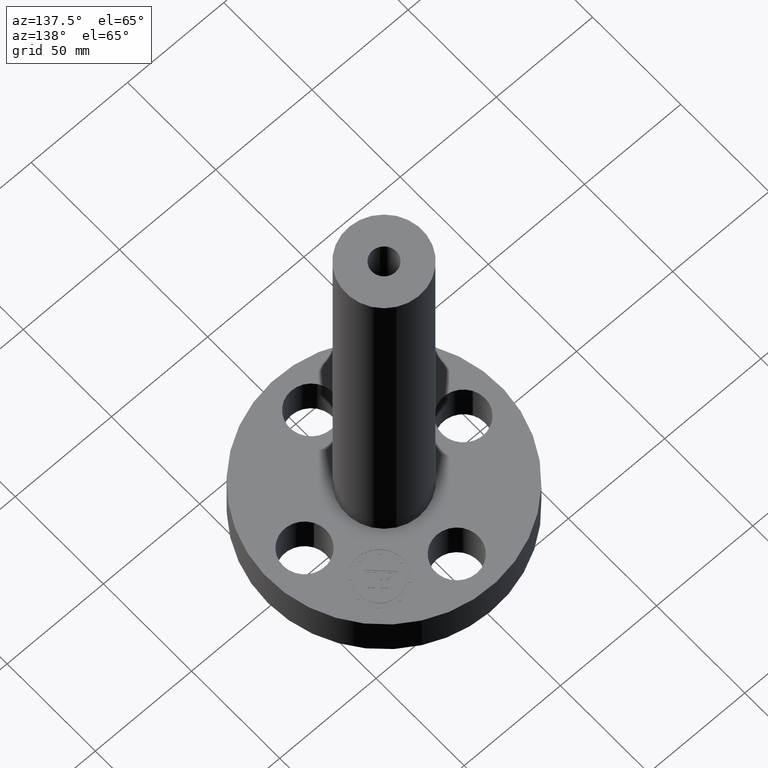
[diagram: clean part render]
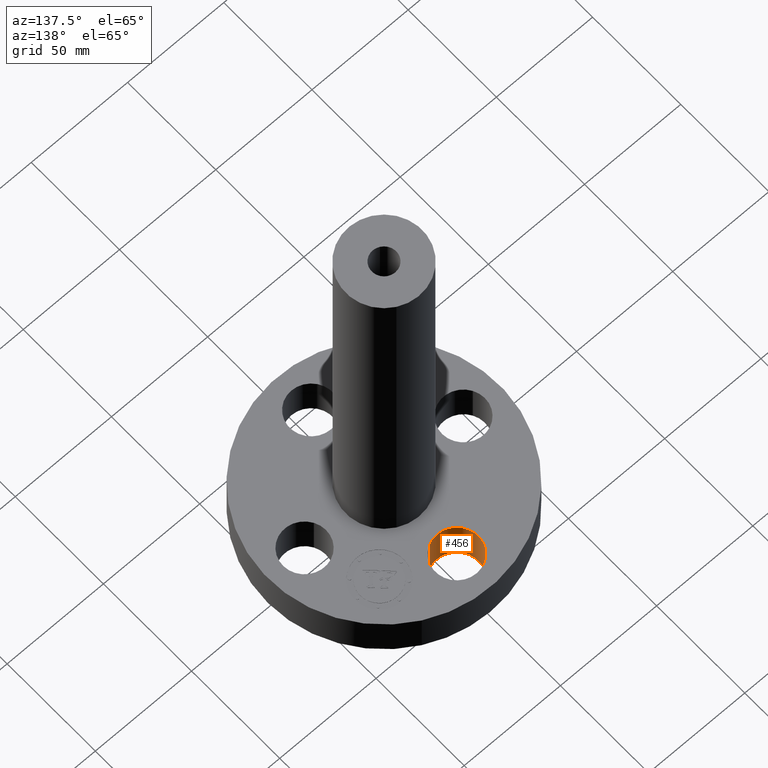
[diagram: same view with one face highlighted and labeled with its STEP entity id]
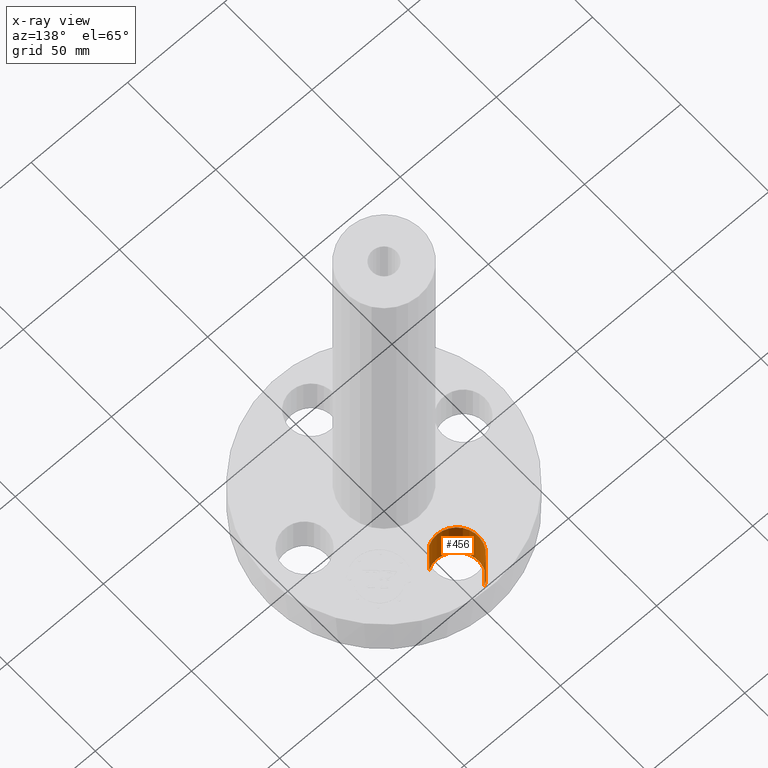
[diagram: x-ray of the same camera — body ghosted, the highlighted face saturated]
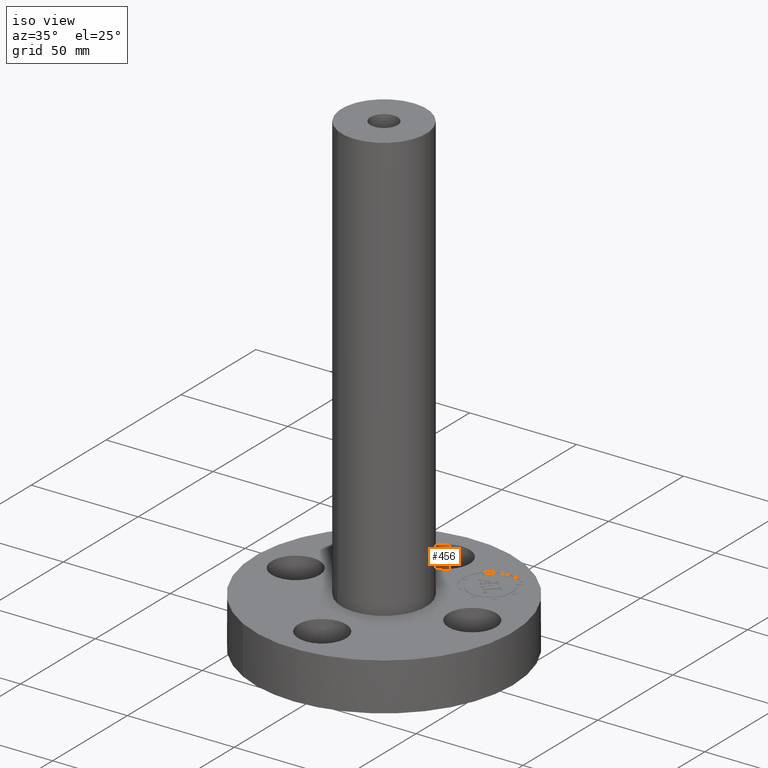
[diagram: same view with one face highlighted and labeled with its STEP entity id]
A machine part, auxiliary view. The second image highlights one B-rep face of the part: STEP entity #456.
The next image is the same camera in x-ray: the body ghosted, the highlighted face saturated — about 0% of this face is hidden behind the body in this view.
A second angle (iso view) of the same face is appended — the face is thin or edge-on in the first view.
In plain terms, the highlighted cylindrical surface (edge-blend (fillet) strip) has radius 11.176 mm, axis along (0, 0, 1).
Its self-contained STEP definition (entity closure, byte-faithful):
#175=AXIS2_PLACEMENT_3D('Circle Axis2P3D',#173,#174,$) ;
#417=AXIS2_PLACEMENT_3D('Cylinder Axis2P3D',#414,#415,#416) ;
#447=AXIS2_PLACEMENT_3D('Circle Axis2P3D',#445,#446,$) ;
#173=CARTESIAN_POINT('Axis2P3D Location',(-2.09805925913E-016,1.62500000001,0.880000000004)) ;
#177=CARTESIAN_POINT('Vertex',(0.210947236987,1.23886367277,0.880000000004)) ;
#179=CARTESIAN_POINT('Vertex',(-0.210947236987,2.01113632724,0.880000000004)) ;
#414=CARTESIAN_POINT('Axis2P3D Location',(-2.98507657293E-016,1.62500000001,0.00393700787402)) ;
#419=CARTESIAN_POINT('Line Origine',(0.210947236987,1.23886367277,0.440000000002)) ;
#423=CARTESIAN_POINT('Vertex',(0.210947236987,1.23886367277,2.2401153548E-016)) ;
#426=CARTESIAN_POINT('Line Origine',(-0.210947236987,2.01113632724,0.440000000002)) ;
#430=CARTESIAN_POINT('Vertex',(-0.210947236987,2.01113632724,2.2401153548E-016)) ;
#445=CARTESIAN_POINT('Axis2P3D Location',(-2.98507657293E-016,1.62500000001,0.)) ;
#174=DIRECTION('Axis2P3D Direction',(0.,0.,-0.0393700787402)) ;
#415=DIRECTION('Axis2P3D Direction',(0.,0.,0.0393700787402)) ;
#416=DIRECTION('Axis2P3D XDirection',(-0.0188750212049,0.0345504945626,0.)) ;
#420=DIRECTION('Vector Direction',(0.,0.,0.0393700787402)) ;
#427=DIRECTION('Vector Direction',(0.,0.,0.0393700787402)) ;
#446=DIRECTION('Axis2P3D Direction',(0.,0.,0.0393700787402)) ;
#421=VECTOR('Line Direction',#420,0.0393700787402) ;
#428=VECTOR('Line Direction',#427,0.0393700787402) ;
#451=ORIENTED_EDGE('',*,*,#432,.F.) ;
#452=ORIENTED_EDGE('',*,*,#181,.F.) ;
#453=ORIENTED_EDGE('',*,*,#425,.T.) ;
#454=ORIENTED_EDGE('',*,*,#449,.T.) ;
#456=ADVANCED_FACE('PartBody',(#455),#418,.F.) ;
#176=CIRCLE('generated circle',#175,0.440000000002) ;
#448=CIRCLE('generated circle',#447,0.440000000002) ;
#418=CYLINDRICAL_SURFACE('generated cylinder',#417,0.440000000002) ;
#181=EDGE_CURVE('',#178,#180,#176,.T.) ;
#425=EDGE_CURVE('',#178,#424,#422,.F.) ;
#432=EDGE_CURVE('',#180,#431,#429,.F.) ;
#449=EDGE_CURVE('',#424,#431,#448,.F.) ;
#450=EDGE_LOOP('',(#451,#452,#453,#454)) ;
#455=FACE_OUTER_BOUND('',#450,.T.) ;
#422=LINE('Line',#419,#421) ;
#429=LINE('Line',#426,#428) ;
#178=VERTEX_POINT('',#177) ;
#180=VERTEX_POINT('',#179) ;
#424=VERTEX_POINT('',#423) ;
#431=VERTEX_POINT('',#430) ;